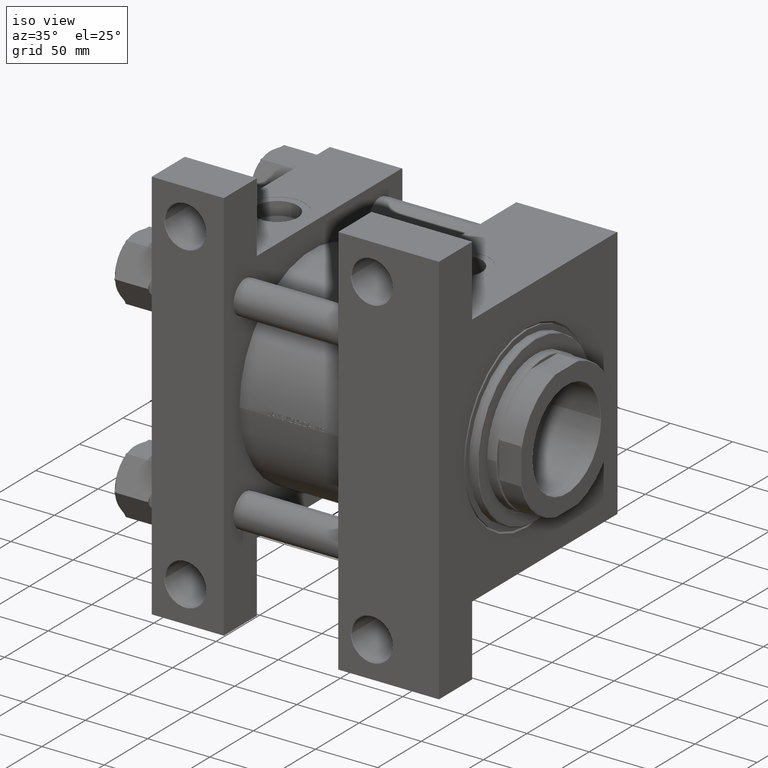
[diagram: clean part render]
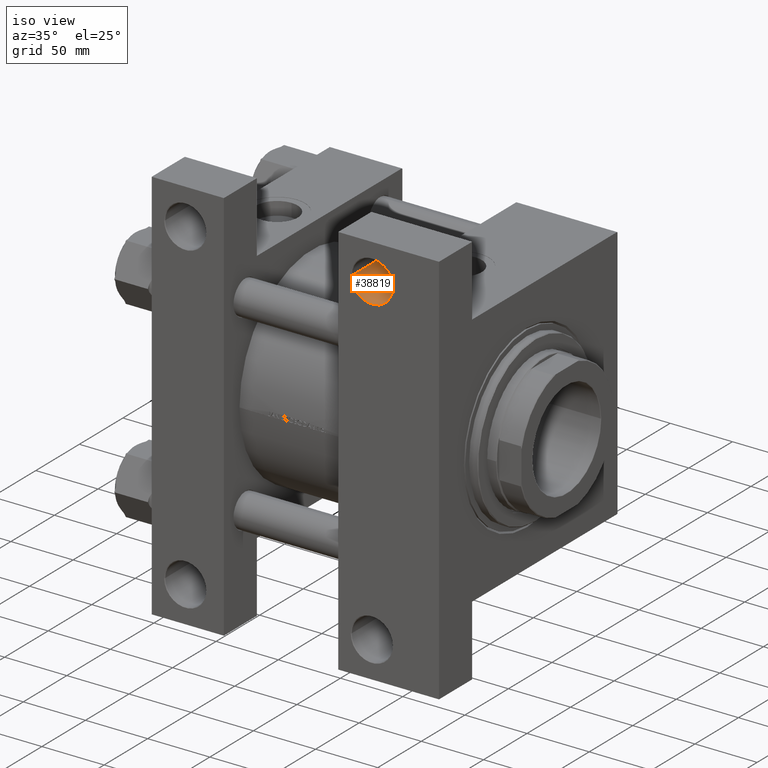
[diagram: same view with one face highlighted and labeled with its STEP entity id]
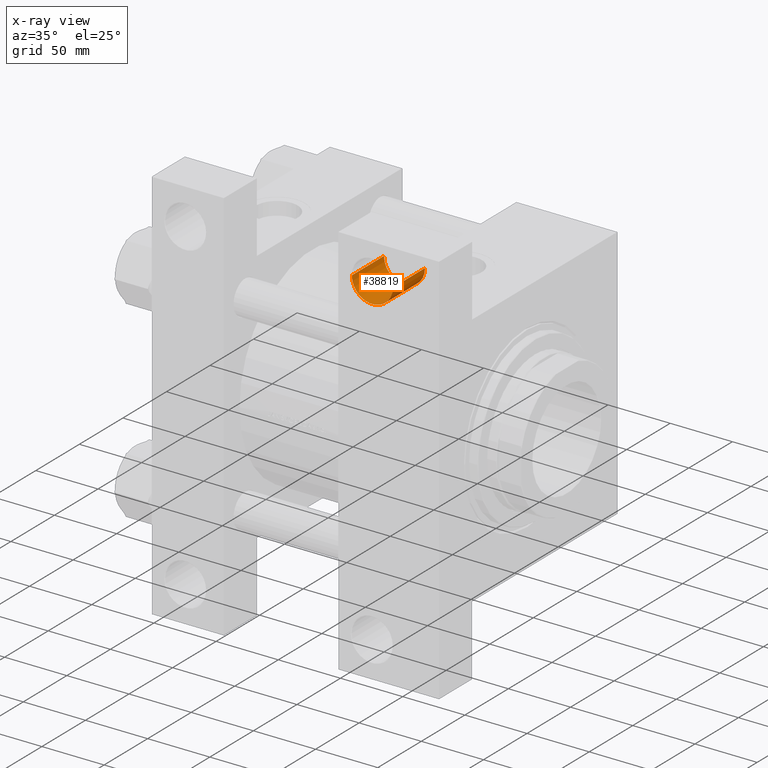
[diagram: x-ray of the same camera — body ghosted, the highlighted face saturated]
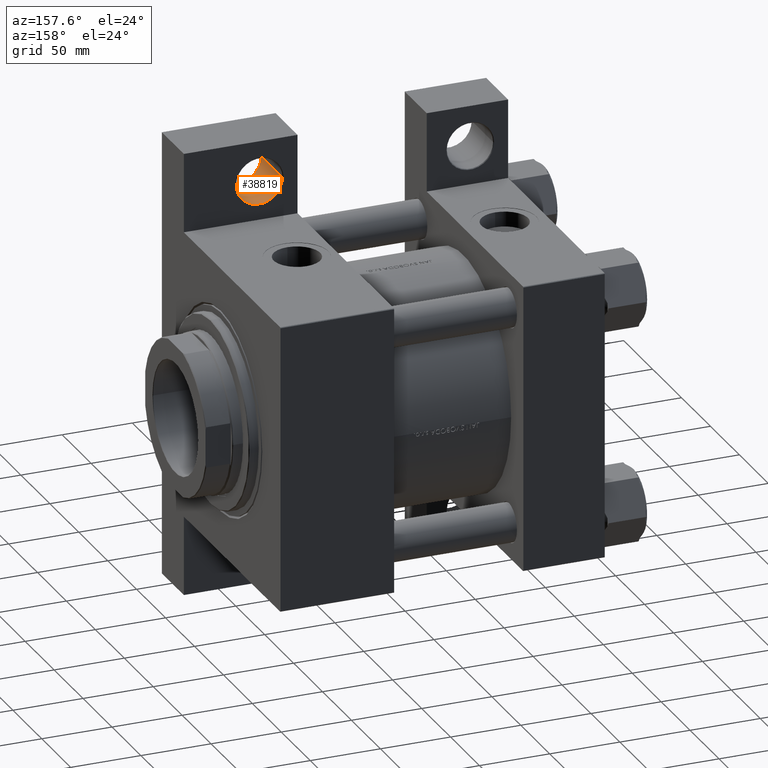
[diagram: same view with one face highlighted and labeled with its STEP entity id]
A machine part, iso view. The second image highlights one B-rep face of the part: STEP entity #38819.
The next image is the same camera in x-ray: the body ghosted, the highlighted face saturated — about 0% of this face is hidden behind the body in this view.
A second angle (auxiliary view) of the same face is appended — the face is thin or edge-on in the first view.
In plain terms, the highlighted cylindrical surface (edge-blend (fillet) strip) has radius 16.4995 mm, axis along (0, 1, 0).
Its self-contained STEP definition (entity closure, byte-faithful):
#193 = ORIENTED_EDGE ( 'NONE', *, *, #38757, .T. ) ;
#3355 = CARTESIAN_POINT ( 'NONE',  ( 177.0000000000000000, -130.0000000000000000, -149.1676333447498166 ) ) ;
#3508 = DIRECTION ( 'NONE',  ( -0.000000000000000000, -0.000000000000000000, -1.000000000000000000 ) ) ;
#4298 = ORIENTED_EDGE ( 'NONE', *, *, #24447, .T. ) ;
#4321 = CARTESIAN_POINT ( 'NONE',  ( 193.4994999999999834, -130.0000000000000000, -149.1676333447498166 ) ) ;
#7500 = DIRECTION ( 'NONE',  ( 0.000000000000000000, 0.000000000000000000, 1.000000000000000000 ) ) ;
#7971 = DIRECTION ( 'NONE',  ( -0.000000000000000000, -0.000000000000000000, 1.000000000000000000 ) ) ;
#9691 = CIRCLE ( 'NONE', #45413, 16.49950000000000117 ) ;
#10665 = FACE_OUTER_BOUND ( 'NONE', #32235, .T. ) ;
#11222 = VECTOR ( 'NONE', #17522, 1000.000000000000000 ) ;
#11287 = DIRECTION ( 'NONE',  ( -1.000000000000000000, 0.000000000000000000, 0.000000000000000000 ) ) ;
#11691 = VERTEX_POINT ( 'NONE', #32913 ) ;
#13156 = CARTESIAN_POINT ( 'NONE',  ( 160.5004999999999882, -130.0000000000000000, -149.1676333447498166 ) ) ;
#13208 = CARTESIAN_POINT ( 'NONE',  ( 193.4994999999999834, -130.0000000000000000, -65.00000000000014211 ) ) ;
#14684 = VECTOR ( 'NONE', #44706, 1000.000000000000000 ) ;
#16809 = LINE ( 'NONE', #13156, #11222 ) ;
#17522 = DIRECTION ( 'NONE',  ( -0.000000000000000000, -0.000000000000000000, 1.000000000000000000 ) ) ;
#18439 = DIRECTION ( 'NONE',  ( -1.000000000000000000, 0.000000000000000000, 0.000000000000000000 ) ) ;
#24447 = EDGE_CURVE ( 'NONE', #11691, #46082, #33775, .T. ) ;
#25542 = ORIENTED_EDGE ( 'NONE', *, *, #41589, .F. ) ;
#25737 = CARTESIAN_POINT ( 'NONE',  ( 177.0000000000000000, -130.0000000000000000, -65.00000000000014211 ) ) ;
#25978 = CYLINDRICAL_SURFACE ( 'NONE', #32085, 16.49950000000000117 ) ;
#29022 = VERTEX_POINT ( 'NONE', #39012 ) ;
#30622 = ORIENTED_EDGE ( 'NONE', *, *, #46212, .T. ) ;
#32085 = AXIS2_PLACEMENT_3D ( 'NONE', #3355, #7971, #44922 ) ;
#32235 = EDGE_LOOP ( 'NONE', ( #25542, #30622, #4298, #193 ) ) ;
#32913 = CARTESIAN_POINT ( 'NONE',  ( 193.4994999999999834, -130.0000000000000000, -102.0000000000000853 ) ) ;
#33482 = CARTESIAN_POINT ( 'NONE',  ( 160.5004999999999882, -130.0000000000000000, -102.0000000000000853 ) ) ;
#33775 = LINE ( 'NONE', #4321, #14684 ) ;
#35220 = CIRCLE ( 'NONE', #39117, 16.49950000000000117 ) ;
#38757 = EDGE_CURVE ( 'NONE', #46082, #29022, #35220, .T. ) ;
#38819 = ADVANCED_FACE ( 'NONE', ( #10665 ), #25978, .F. ) ;
#39012 = CARTESIAN_POINT ( 'NONE',  ( 160.5004999999999882, -130.0000000000000000, -65.00000000000014211 ) ) ;
#39117 = AXIS2_PLACEMENT_3D ( 'NONE', #25737, #7500, #18439 ) ;
#40019 = CARTESIAN_POINT ( 'NONE',  ( 177.0000000000000000, -130.0000000000000000, -102.0000000000000853 ) ) ;
#41589 = EDGE_CURVE ( 'NONE', #44717, #29022, #16809, .T. ) ;
#44706 = DIRECTION ( 'NONE',  ( -0.000000000000000000, -0.000000000000000000, 1.000000000000000000 ) ) ;
#44717 = VERTEX_POINT ( 'NONE', #33482 ) ;
#44922 = DIRECTION ( 'NONE',  ( 1.000000000000000000, 0.000000000000000000, 0.000000000000000000 ) ) ;
#45413 = AXIS2_PLACEMENT_3D ( 'NONE', #40019, #3508, #11287 ) ;
#46082 = VERTEX_POINT ( 'NONE', #13208 ) ;
#46212 = EDGE_CURVE ( 'NONE', #44717, #11691, #9691, .T. ) ;